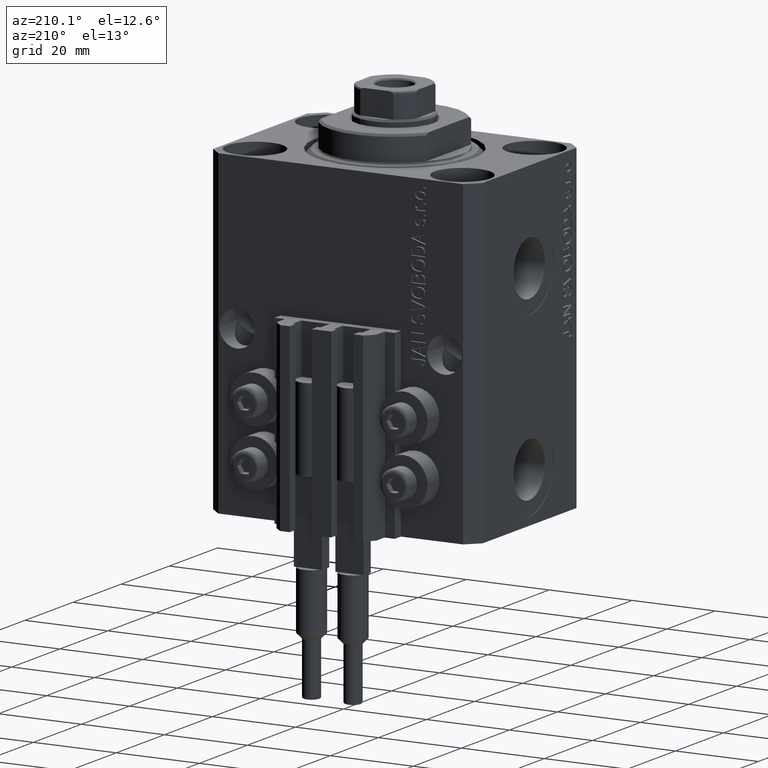
[diagram: clean part render]
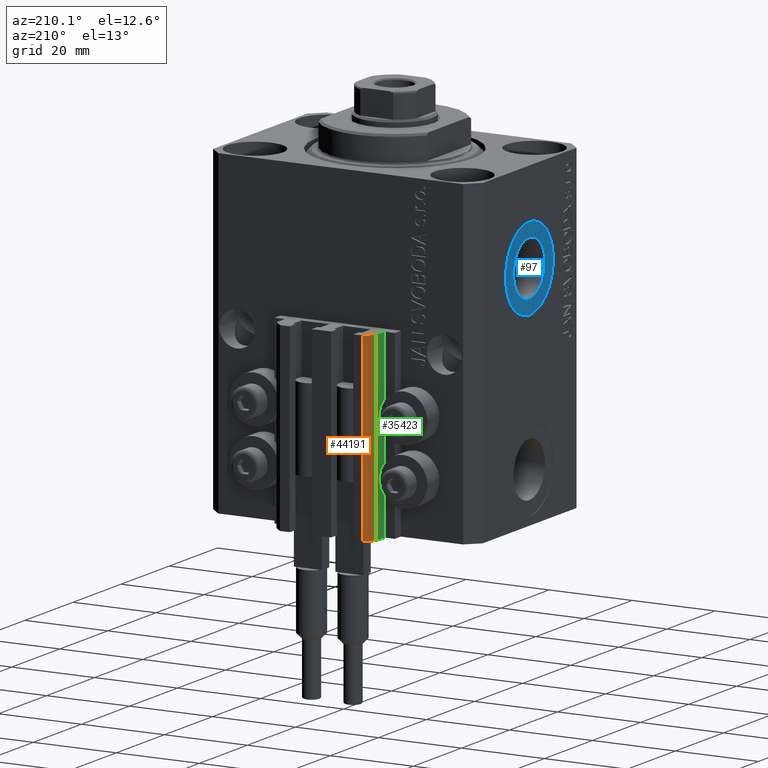
[diagram: same view with three faces highlighted in distinct colors, each labeled with its STEP entity id]
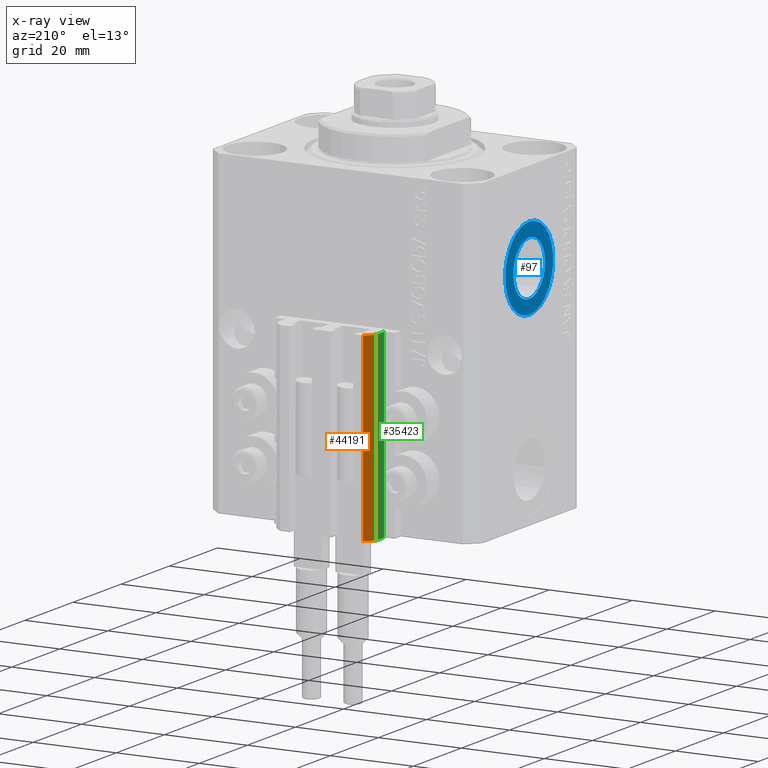
[diagram: x-ray of the same camera — body ghosted, the three highlighted faces saturated]
A machine part, auxiliary view with three faces highlighted in distinct colors.
The next image is the same camera in x-ray (body ghosted, the three faces saturated) — at least one of them is partly hidden behind the body in this view.
Their STEP definitions:

[orange] entity #44191 — the highlighted planar face has unit normal (-0.7071, 0.7071, 0).
#95 = DIRECTION ( 'NONE',  ( 0.000000000000000000, 0.000000000000000000, 1.000000000000000000 ) ) ;
#1248 = ORIENTED_EDGE ( 'NONE', *, *, #17143, .T. ) ;
#9674 = VERTEX_POINT ( 'NONE', #14261 ) ;
#10346 = VECTOR ( 'NONE', #45443, 1000.000000000000000 ) ;
#12654 = VECTOR ( 'NONE', #29477, 999.9999999999998863 ) ;
#13858 = DIRECTION ( 'NONE',  ( -0.7071067811865479058, 0.7071067811865472397, 0.000000000000000000 ) ) ;
#13923 = EDGE_CURVE ( 'NONE', #25860, #37354, #43765, .T. ) ;
#14261 = CARTESIAN_POINT ( 'NONE',  ( -12.00000000000000000, 28.49999999999948841, -33.00000000000000000 ) ) ;
#14633 = CARTESIAN_POINT ( 'NONE',  ( -10.00000000000000000, 30.49999999999948841, -77.00000000000000000 ) ) ;
#17143 = EDGE_CURVE ( 'NONE', #22260, #9674, #41076, .T. ) ;
#20628 = EDGE_CURVE ( 'NONE', #25860, #22260, #44026, .T. ) ;
#20655 = ORIENTED_EDGE ( 'NONE', *, *, #22008, .F. ) ;
#20773 = CARTESIAN_POINT ( 'NONE',  ( -10.00000000000000000, 30.49999999999948841, -77.00000000000000000 ) ) ;
#22008 = EDGE_CURVE ( 'NONE', #37354, #9674, #45066, .T. ) ;
#22260 = VERTEX_POINT ( 'NONE', #28462 ) ;
#25860 = VERTEX_POINT ( 'NONE', #20773 ) ;
#26632 = CARTESIAN_POINT ( 'NONE',  ( -10.00000000000000000, 30.49999999999948841, -33.00000000000000000 ) ) ;
#28462 = CARTESIAN_POINT ( 'NONE',  ( -12.00000000000000000, 28.49999999999948841, -77.00000000000000000 ) ) ;
#28736 = CARTESIAN_POINT ( 'NONE',  ( -10.00000000000000000, 30.49999999999948841, -33.00000000000000000 ) ) ;
#29477 = DIRECTION ( 'NONE',  ( -0.7071067811865472397, -0.7071067811865479058, 0.000000000000000000 ) ) ;
#30416 = VECTOR ( 'NONE', #95, 1000.000000000000000 ) ;
#30637 = CARTESIAN_POINT ( 'NONE',  ( -12.00000000000000000, 28.49999999999948841, -77.00000000000000000 ) ) ;
#32060 = ORIENTED_EDGE ( 'NONE', *, *, #13923, .F. ) ;
#33111 = CARTESIAN_POINT ( 'NONE',  ( -10.00000000000000000, 30.49999999999948841, -77.00000000000000000 ) ) ;
#33340 = ORIENTED_EDGE ( 'NONE', *, *, #20628, .T. ) ;
#34125 = DIRECTION ( 'NONE',  ( -0.7071067811865472397, -0.7071067811865479058, 0.000000000000000000 ) ) ;
#35977 = VECTOR ( 'NONE', #34125, 999.9999999999998863 ) ;
#37354 = VERTEX_POINT ( 'NONE', #28736 ) ;
#38622 = DIRECTION ( 'NONE',  ( -0.7071067811865472397, -0.7071067811865479058, 0.000000000000000000 ) ) ;
#38871 = CARTESIAN_POINT ( 'NONE',  ( -10.00000000000000000, 30.49999999999948841, -77.00000000000000000 ) ) ;
#39116 = FACE_OUTER_BOUND ( 'NONE', #45839, .T. ) ;
#40609 = AXIS2_PLACEMENT_3D ( 'NONE', #38871, #13858, #38622 ) ;
#41076 = LINE ( 'NONE', #30637, #10346 ) ;
#43765 = LINE ( 'NONE', #14633, #30416 ) ;
#44026 = LINE ( 'NONE', #33111, #12654 ) ;
#44191 = ADVANCED_FACE ( 'NONE', ( #39116 ), #47119, .T. ) ;
#45066 = LINE ( 'NONE', #26632, #35977 ) ;
#45443 = DIRECTION ( 'NONE',  ( 0.000000000000000000, 0.000000000000000000, 1.000000000000000000 ) ) ;
#45839 = EDGE_LOOP ( 'NONE', ( #20655, #32060, #33340, #1248 ) ) ;
#47119 = PLANE ( 'NONE',  #40609 ) ;

[blue] entity #97 — the highlighted planar face has unit normal (-1, 0, 0).
#97 = ADVANCED_FACE ( 'NONE', ( #39810, #14345 ), #36658, .T. ) ;
#1166 = AXIS2_PLACEMENT_3D ( 'NONE', #42050, #45932, #5647 ) ;
#3426 = CARTESIAN_POINT ( 'NONE',  ( -32.39999999999650271, 0.000000000000000000, -22.00000000000000000 ) ) ;
#3521 = VERTEX_POINT ( 'NONE', #13533 ) ;
#4672 = ORIENTED_EDGE ( 'NONE', *, *, #45520, .F. ) ;
#4716 = CARTESIAN_POINT ( 'NONE',  ( -32.39999999999650271, 8.058175938389579572E-16, -28.57999999999999829 ) ) ;
#5476 = CIRCLE ( 'NONE', #26428, 10.00000000000000000 ) ;
#5647 = DIRECTION ( 'NONE',  ( 0.000000000000000000, 0.000000000000000000, 1.000000000000000000 ) ) ;
#6199 = ORIENTED_EDGE ( 'NONE', *, *, #9470, .T. ) ;
#7162 = ORIENTED_EDGE ( 'NONE', *, *, #12044, .T. ) ;
#7309 = DIRECTION ( 'NONE',  ( -1.000000000000000000, 0.000000000000000000, 0.000000000000000000 ) ) ;
#7512 = VERTEX_POINT ( 'NONE', #37194 ) ;
#9470 = EDGE_CURVE ( 'NONE', #33084, #3521, #5476, .T. ) ;
#12044 = EDGE_CURVE ( 'NONE', #3521, #33084, #12530, .T. ) ;
#12530 = CIRCLE ( 'NONE', #28786, 10.00000000000000000 ) ;
#13469 = EDGE_LOOP ( 'NONE', ( #6199, #7162 ) ) ;
#13533 = CARTESIAN_POINT ( 'NONE',  ( -32.39999999999650271, 1.224646799147353059E-15, -32.00000000000000000 ) ) ;
#14345 = FACE_OUTER_BOUND ( 'NONE', #13469, .T. ) ;
#15997 = DIRECTION ( 'NONE',  ( 0.000000000000000000, 0.000000000000000000, 1.000000000000000000 ) ) ;
#16841 = CARTESIAN_POINT ( 'NONE',  ( -32.39999999999650271, 0.000000000000000000, -11.99999999999999822 ) ) ;
#18365 = ORIENTED_EDGE ( 'NONE', *, *, #37170, .F. ) ;
#18844 = DIRECTION ( 'NONE',  ( 0.000000000000000000, 0.000000000000000000, 1.000000000000000000 ) ) ;
#19650 = CARTESIAN_POINT ( 'NONE',  ( -32.39999999999650271, 0.000000000000000000, -22.00000000000000000 ) ) ;
#26428 = AXIS2_PLACEMENT_3D ( 'NONE', #19650, #38311, #15997 ) ;
#28786 = AXIS2_PLACEMENT_3D ( 'NONE', #42651, #39240, #31723 ) ;
#29764 = CARTESIAN_POINT ( 'NONE',  ( -32.39999999999650271, 0.000000000000000000, -22.00000000000000000 ) ) ;
#30865 = VERTEX_POINT ( 'NONE', #4716 ) ;
#31723 = DIRECTION ( 'NONE',  ( 0.000000000000000000, 0.000000000000000000, 1.000000000000000000 ) ) ;
#33084 = VERTEX_POINT ( 'NONE', #16841 ) ;
#33263 = DIRECTION ( 'NONE',  ( 0.000000000000000000, 0.000000000000000000, 1.000000000000000000 ) ) ;
#34308 = CIRCLE ( 'NONE', #44405, 6.579999999999999183 ) ;
#36658 = PLANE ( 'NONE',  #40134 ) ;
#37170 = EDGE_CURVE ( 'NONE', #30865, #7512, #34308, .T. ) ;
#37194 = CARTESIAN_POINT ( 'NONE',  ( -32.39999999999650271, 0.000000000000000000, -15.41999999999999993 ) ) ;
#37598 = CIRCLE ( 'NONE', #1166, 6.579999999999999183 ) ;
#38311 = DIRECTION ( 'NONE',  ( -1.000000000000000000, 0.000000000000000000, 0.000000000000000000 ) ) ;
#39240 = DIRECTION ( 'NONE',  ( -1.000000000000000000, 0.000000000000000000, 0.000000000000000000 ) ) ;
#39339 = EDGE_LOOP ( 'NONE', ( #4672, #18365 ) ) ;
#39810 = FACE_BOUND ( 'NONE', #39339, .T. ) ;
#40134 = AXIS2_PLACEMENT_3D ( 'NONE', #3426, #7309, #33263 ) ;
#42050 = CARTESIAN_POINT ( 'NONE',  ( -32.39999999999650271, 0.000000000000000000, -22.00000000000000000 ) ) ;
#42651 = CARTESIAN_POINT ( 'NONE',  ( -32.39999999999650271, 0.000000000000000000, -22.00000000000000000 ) ) ;
#44405 = AXIS2_PLACEMENT_3D ( 'NONE', #29764, #44568, #18844 ) ;
#44568 = DIRECTION ( 'NONE',  ( -1.000000000000000000, 0.000000000000000000, 0.000000000000000000 ) ) ;
#45520 = EDGE_CURVE ( 'NONE', #7512, #30865, #37598, .T. ) ;
#45932 = DIRECTION ( 'NONE',  ( -1.000000000000000000, 0.000000000000000000, 0.000000000000000000 ) ) ;

[green] entity #35423 — the highlighted planar face has unit normal (-1, 0, 0).
#876 = DIRECTION ( 'NONE',  ( -1.000000000000000000, 0.000000000000000000, 0.000000000000000000 ) ) ;
#4749 = FACE_OUTER_BOUND ( 'NONE', #15053, .T. ) ;
#4950 = VECTOR ( 'NONE', #28436, 1000.000000000000000 ) ;
#5670 = LINE ( 'NONE', #43260, #18578 ) ;
#6100 = CARTESIAN_POINT ( 'NONE',  ( -12.00000000000000000, 25.19999999999949125, -77.00000000000000000 ) ) ;
#8000 = VERTEX_POINT ( 'NONE', #43076 ) ;
#9674 = VERTEX_POINT ( 'NONE', #14261 ) ;
#10010 = DIRECTION ( 'NONE',  ( 0.000000000000000000, -1.000000000000000000, 0.000000000000000000 ) ) ;
#10346 = VECTOR ( 'NONE', #45443, 1000.000000000000000 ) ;
#12687 = CARTESIAN_POINT ( 'NONE',  ( -12.00000000000000000, 28.49999999999948841, -33.00000000000000000 ) ) ;
#14261 = CARTESIAN_POINT ( 'NONE',  ( -12.00000000000000000, 28.49999999999948841, -33.00000000000000000 ) ) ;
#15053 = EDGE_LOOP ( 'NONE', ( #45746, #21733, #19532, #44696 ) ) ;
#17143 = EDGE_CURVE ( 'NONE', #22260, #9674, #41076, .T. ) ;
#17204 = EDGE_CURVE ( 'NONE', #8000, #37260, #46153, .T. ) ;
#18578 = VECTOR ( 'NONE', #10010, 1000.000000000000000 ) ;
#19532 = ORIENTED_EDGE ( 'NONE', *, *, #26299, .T. ) ;
#20022 = CARTESIAN_POINT ( 'NONE',  ( -12.00000000000000000, 25.19999999999949125, -33.00000000000000000 ) ) ;
#20934 = DIRECTION ( 'NONE',  ( 0.000000000000000000, -1.000000000000000000, 0.000000000000000000 ) ) ;
#21733 = ORIENTED_EDGE ( 'NONE', *, *, #17143, .F. ) ;
#22260 = VERTEX_POINT ( 'NONE', #28462 ) ;
#22651 = AXIS2_PLACEMENT_3D ( 'NONE', #41633, #876, #22725 ) ;
#22725 = DIRECTION ( 'NONE',  ( 0.000000000000000000, 0.000000000000000000, 1.000000000000000000 ) ) ;
#26299 = EDGE_CURVE ( 'NONE', #22260, #8000, #5670, .T. ) ;
#28436 = DIRECTION ( 'NONE',  ( 0.000000000000000000, 0.000000000000000000, 1.000000000000000000 ) ) ;
#28462 = CARTESIAN_POINT ( 'NONE',  ( -12.00000000000000000, 28.49999999999948841, -77.00000000000000000 ) ) ;
#30637 = CARTESIAN_POINT ( 'NONE',  ( -12.00000000000000000, 28.49999999999948841, -77.00000000000000000 ) ) ;
#35423 = ADVANCED_FACE ( 'NONE', ( #4749 ), #37266, .T. ) ;
#37260 = VERTEX_POINT ( 'NONE', #20022 ) ;
#37266 = PLANE ( 'NONE',  #22651 ) ;
#41076 = LINE ( 'NONE', #30637, #10346 ) ;
#41633 = CARTESIAN_POINT ( 'NONE',  ( -12.00000000000000000, 28.49999999999948841, -77.00000000000000000 ) ) ;
#43076 = CARTESIAN_POINT ( 'NONE',  ( -12.00000000000000000, 25.19999999999949125, -77.00000000000000000 ) ) ;
#43260 = CARTESIAN_POINT ( 'NONE',  ( -12.00000000000000000, 28.49999999999948841, -77.00000000000000000 ) ) ;
#43796 = VECTOR ( 'NONE', #20934, 1000.000000000000000 ) ;
#44696 = ORIENTED_EDGE ( 'NONE', *, *, #17204, .T. ) ;
#45443 = DIRECTION ( 'NONE',  ( 0.000000000000000000, 0.000000000000000000, 1.000000000000000000 ) ) ;
#45746 = ORIENTED_EDGE ( 'NONE', *, *, #46417, .F. ) ;
#45943 = LINE ( 'NONE', #12687, #43796 ) ;
#46153 = LINE ( 'NONE', #6100, #4950 ) ;
#46417 = EDGE_CURVE ( 'NONE', #9674, #37260, #45943, .T. ) ;